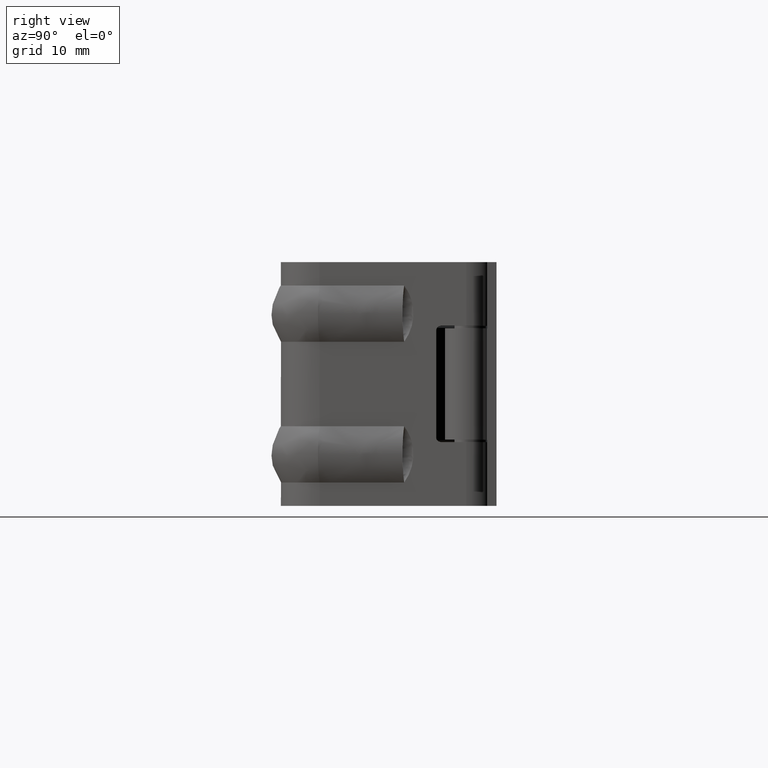
[diagram: clean part render]
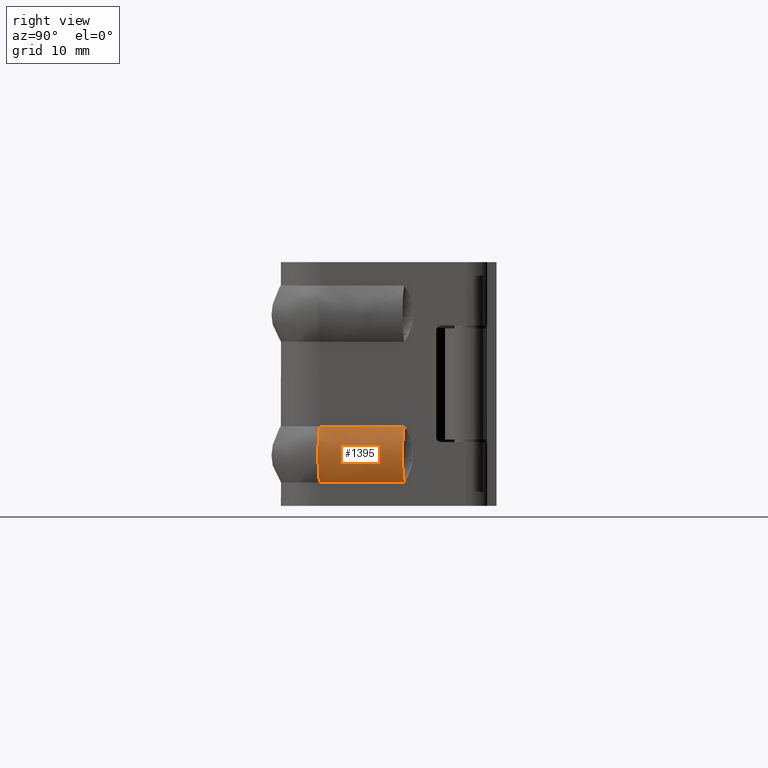
[diagram: same view with one face highlighted and labeled with its STEP entity id]
A machine part, right view. The second image highlights one B-rep face of the part: STEP entity #1395.
In plain terms, the highlighted face is a freeform B-spline surface patch.
Its self-contained STEP definition (entity closure, byte-faithful):
#1321=CARTESIAN_POINT('',(-0.222052306208574,-16.320383186588760,2.328379223553138));
#1322=CARTESIAN_POINT('',(1.449107426060732,-6.842725196413053,2.328379223553138));
#1323=CARTESIAN_POINT('',(2.352716486150922,-16.774382468917278,5.514688003490208));
#1324=CARTESIAN_POINT('',(4.023876218420229,-7.296724478741563,5.514688003490208));
#1325=CARTESIAN_POINT('',(-0.236244360743900,-16.317880755072220,8.689117281654932));
#1326=CARTESIAN_POINT('',(1.434915371525407,-6.840222764896510,8.689117281654934));
#1334=(BOUNDED_SURFACE()B_SPLINE_SURFACE(1,2,((#1321,#1323,#1325),(#1322,#1324,#1326)),.UNSPECIFIED.,.F.,.F.,.U.)B_SPLINE_SURFACE_WITH_KNOTS((2,2),(3,3),(0.0,9.623864911224594),(0.0,7.180702325543587),.UNSPECIFIED.)GEOMETRIC_REPRESENTATION_ITEM()RATIONAL_B_SPLINE_SURFACE(((1.0,0.771624583387720,1.0),(1.0,0.771624583387720,1.0)))REPRESENTATION_ITEM('')SURFACE());
#1335=CARTESIAN_POINT('',(0.174227150692116,-14.848472433970739,2.500000000000000));
#1336=VERTEX_POINT('',#1335);
#1337=CARTESIAN_POINT('',(1.540977907672725,-7.097273818486330,2.500034154519426));
#1338=VERTEX_POINT('',#1337);
#1339=CARTESIAN_POINT('',(0.174227150692116,-14.848472433970739,2.500000000000000));
#1340=CARTESIAN_POINT('',(1.540977907672725,-7.097273818486330,2.500034154519426));
#1341=QUASI_UNIFORM_CURVE('',1,(#1339,#1340),.UNSPECIFIED.,.F.,.U.);
#1342=EDGE_CURVE('',#1336,#1338,#1341,.T.);
#1343=ORIENTED_EDGE('',*,*,#1342,.T.);
#1344=CARTESIAN_POINT('',(1.540976835112095,-7.097279901256290,8.499989324198040));
#1345=VERTEX_POINT('',#1344);
#1346=CARTESIAN_POINT('',(1.540977907672725,-7.097273818486330,2.500034154519426));
#1347=CARTESIAN_POINT('',(3.756778122899482,-7.487980659743400,5.500013341338983));
#1348=CARTESIAN_POINT('',(1.540976835112095,-7.097279901256290,8.499989324198040));
#1356=(BOUNDED_CURVE()B_SPLINE_CURVE(2,(#1346,#1347,#1348),.UNSPECIFIED.,.F.,.U.)CURVE()GEOMETRIC_REPRESENTATION_ITEM()QUASI_UNIFORM_CURVE()RATIONAL_B_SPLINE_CURVE((1.0,0.800000577347025,1.0))REPRESENTATION_ITEM(''));
#1357=EDGE_CURVE('',#1338,#1345,#1356,.T.);
#1358=ORIENTED_EDGE('',*,*,#1357,.T.);
#1359=CARTESIAN_POINT('',(0.174227150692119,-14.848472433970739,8.500014578826949));
#1360=VERTEX_POINT('',#1359);
#1361=CARTESIAN_POINT('',(0.174227150692119,-14.848472433970739,8.500014578826949));
#1362=CARTESIAN_POINT('',(1.540976835112095,-7.097279901256290,8.499989324198040));
#1363=QUASI_UNIFORM_CURVE('',1,(#1361,#1362),.UNSPECIFIED.,.F.,.U.);
#1364=EDGE_CURVE('',#1360,#1345,#1363,.T.);
#1365=ORIENTED_EDGE('',*,*,#1364,.F.);
#1366=CARTESIAN_POINT('',(-0.049667633944439,-16.118243081507501,8.500015772954459));
#1367=VERTEX_POINT('',#1366);
#1368=CARTESIAN_POINT('',(-0.049667633944439,-16.118243081507501,8.500015772954459));
#1369=CARTESIAN_POINT('',(0.174227150692119,-14.848472433970739,8.500014578826949));
#1370=QUASI_UNIFORM_CURVE('',1,(#1368,#1369),.UNSPECIFIED.,.F.,.U.);
#1371=EDGE_CURVE('',#1367,#1360,#1370,.T.);
#1372=ORIENTED_EDGE('',*,*,#1371,.F.);
#1373=CARTESIAN_POINT('',(-0.049667633944439,-16.118243081507501,2.499998805872490));
#1374=VERTEX_POINT('',#1373);
#1375=CARTESIAN_POINT('',(-0.049667633944439,-16.118243081507501,2.499998805872490));
#1376=CARTESIAN_POINT('',(2.166181293058581,-16.508955375983319,5.500007289413476));
#1377=CARTESIAN_POINT('',(-0.049667633944439,-16.118243081507501,8.500015772954459));
#1385=(BOUNDED_CURVE()B_SPLINE_CURVE(2,(#1375,#1376,#1377),.UNSPECIFIED.,.F.,.U.)CURVE()GEOMETRIC_REPRESENTATION_ITEM()QUASI_UNIFORM_CURVE()RATIONAL_B_SPLINE_CURVE((1.0,0.799996759295244,1.0))REPRESENTATION_ITEM(''));
#1386=EDGE_CURVE('',#1374,#1367,#1385,.T.);
#1387=ORIENTED_EDGE('',*,*,#1386,.F.);
#1388=CARTESIAN_POINT('',(-0.049667633944439,-16.118243081507501,2.499998805872490));
#1389=CARTESIAN_POINT('',(0.174227150692116,-14.848472433970739,2.500000000000000));
#1390=QUASI_UNIFORM_CURVE('',1,(#1388,#1389),.UNSPECIFIED.,.F.,.U.);
#1391=EDGE_CURVE('',#1374,#1336,#1390,.T.);
#1392=ORIENTED_EDGE('',*,*,#1391,.T.);
#1393=EDGE_LOOP('',(#1343,#1358,#1365,#1372,#1387,#1392));
#1394=FACE_OUTER_BOUND('',#1393,.T.);
#1395=ADVANCED_FACE('',(#1394),#1334,.T.);